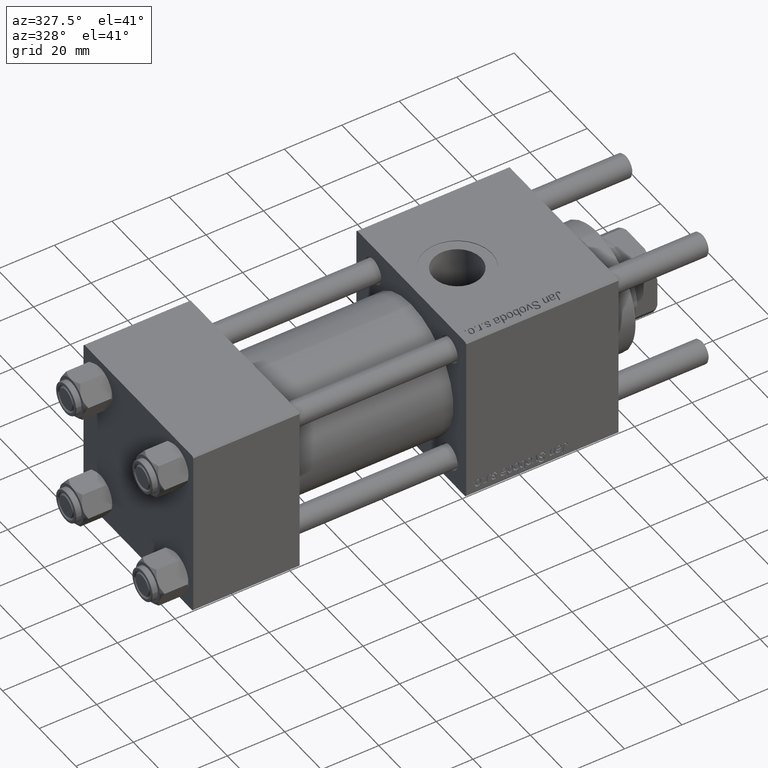
[diagram: clean part render]
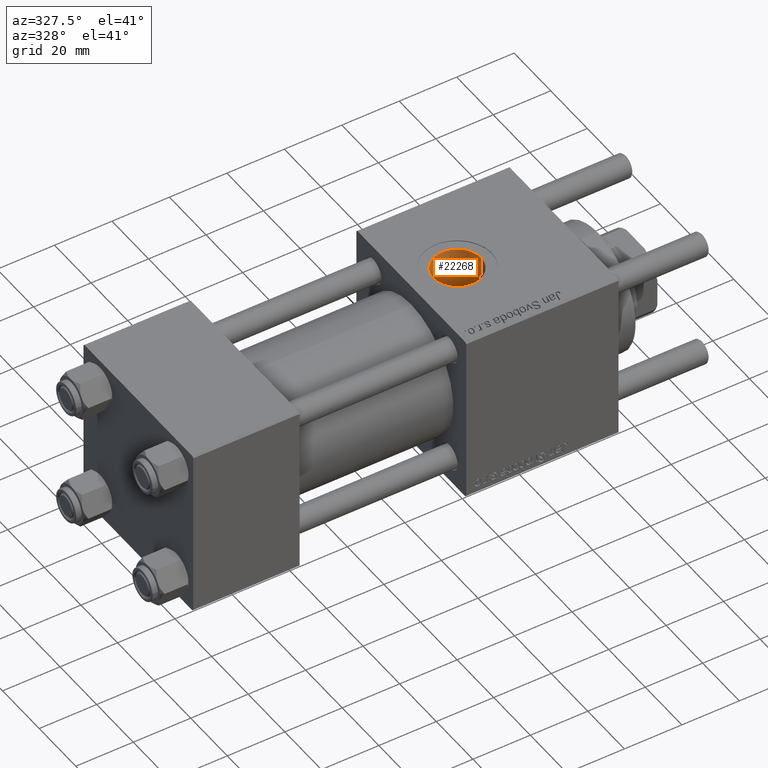
[diagram: same view with one face highlighted and labeled with its STEP entity id]
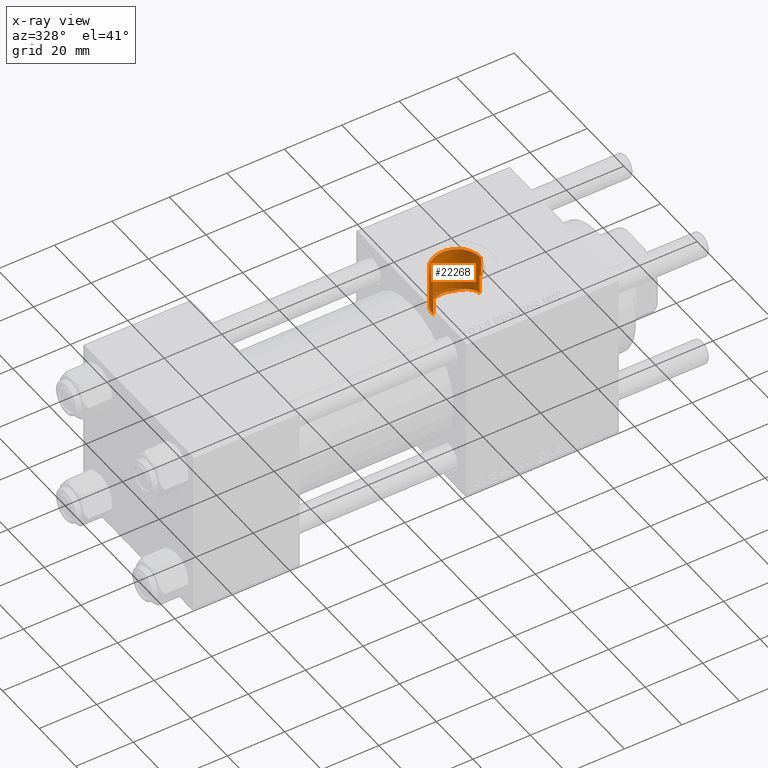
[diagram: x-ray of the same camera — body ghosted, the highlighted face saturated]
A machine part, auxiliary view. The second image highlights one B-rep face of the part: STEP entity #22268.
The next image is the same camera in x-ray: the body ghosted, the highlighted face saturated — about 4% of this face is hidden behind the body in this view.
In plain terms, the highlighted cylindrical surface (edge-blend (fillet) strip) has radius 8.33 mm, axis along (0, 0, -1).
Its self-contained STEP definition (entity closure, byte-faithful):
#111 = CARTESIAN_POINT ( 'NONE',  ( 106.9024469684808594, 7.262668436259995808, 13.69461748577755777 ) ) ;
#610 = ORIENTED_EDGE ( 'NONE', *, *, #39123, .F. ) ;
#725 = EDGE_CURVE ( 'NONE', #4634, #25964, #49102, .T. ) ;
#1122 = B_SPLINE_CURVE_WITH_KNOTS ( 'NONE', 3,
 ( #18820, #31881, #32469, #9627, #55001, #14656, #44934, #22977, #4267, #50565, #4567, #36318, #37196, #28024, #111, #54418 ),
 .UNSPECIFIED., .F., .F.,
 ( 4, 2, 2, 2, 2, 2, 2, 4 ),
 ( 0.009374448786900189609, 0.01054305657029121907, 0.01171166435368224679, 0.01288027213707327798, 0.01404887992046430570, 0.01638609548724638543, 0.01755470327063740621, 0.01872331105402843393 ),
 .UNSPECIFIED. ) ;
#3315 = CARTESIAN_POINT ( 'NONE',  ( 118.5762318573482190, 3.480672338514595232, 15.10763638059241742 ) ) ;
#3953 = B_SPLINE_CURVE_WITH_KNOTS ( 'NONE', 3,
 ( #23844, #57323, #30339, #30631, #47558, #56741, #52895, #16982, #15807, #3315, #52603, #20560, #16099, #38346 ),
 .UNSPECIFIED., .F., .F.,
 ( 4, 2, 2, 2, 2, 2, 4 ),
 ( 1.762687342693953287E-17, 0.002167183143396243707, 0.003250774715094356237, 0.004334366286792468333, 0.005417957858490579995, 0.006501549430188692524, 0.008668732573584917583 ),
 .UNSPECIFIED. ) ;
#4267 = CARTESIAN_POINT ( 'NONE',  ( 103.7310443908884849, 4.086272943823808568, 14.95550201764395837 ) ) ;
#4567 = CARTESIAN_POINT ( 'NONE',  ( 104.8202029067652745, 5.636575315625639071, 14.44950328828300279 ) ) ;
#4634 = VERTEX_POINT ( 'NONE', #28249 ) ;
#4742 = CARTESIAN_POINT ( 'NONE',  ( 102.6700000000000017, -3.469446951953613794E-15, 29.79999999999999716 ) ) ;
#5001 = B_SPLINE_CURVE_WITH_KNOTS ( 'NONE', 3,
 ( #19923, #56991, #47224, #16346 ),
 .UNSPECIFIED., .F., .F.,
 ( 4, 4 ),
 ( 0.000000000000000000, 0.0007063285354565328363 ),
 .UNSPECIFIED. ) ;
#5842 = DIRECTION ( 'NONE',  ( -1.000000000000000000, 0.000000000000000000, 0.000000000000000000 ) ) ;
#6371 = VERTEX_POINT ( 'NONE', #44230 ) ;
#6449 = VERTEX_POINT ( 'NONE', #4742 ) ;
#7767 = CARTESIAN_POINT ( 'NONE',  ( 119.3300000000000125, -2.449316168263869821E-15, 29.79999999999999716 ) ) ;
#9627 = CARTESIAN_POINT ( 'NONE',  ( 102.8066106803055249, 1.552053222944098865, 15.42694403133658909 ) ) ;
#10156 = CARTESIAN_POINT ( 'NONE',  ( 111.0000000000000000, -3.469446951953613794E-15, 29.79999999999999716 ) ) ;
#12697 = CIRCLE ( 'NONE', #44920, 8.330000000000003624 ) ;
#14327 = CARTESIAN_POINT ( 'NONE',  ( 107.2451498032545061, 7.435724578008534813, 13.59999999999999076 ) ) ;
#14476 = FACE_OUTER_BOUND ( 'NONE', #58076, .T. ) ;
#14656 = CARTESIAN_POINT ( 'NONE',  ( 103.1053547801138848, 2.686155454129544484, 15.27016736770789862 ) ) ;
#14764 = CYLINDRICAL_SURFACE ( 'NONE', #38339, 8.330000000000003624 ) ;
#15807 = CARTESIAN_POINT ( 'NONE',  ( 118.2534000047988201, 4.111271999610754513, 14.94835106229168176 ) ) ;
#15841 = CARTESIAN_POINT ( 'NONE',  ( 102.6699999999996180, -2.713081726590588117E-14, 15.50000000000020428 ) ) ;
#15863 = DIRECTION ( 'NONE',  ( 0.000000000000000000, 0.000000000000000000, -1.000000000000000000 ) ) ;
#16099 = CARTESIAN_POINT ( 'NONE',  ( 119.2378105529334107, 1.437110862293704328, 15.45056201154794806 ) ) ;
#16320 = CARTESIAN_POINT ( 'NONE',  ( 111.0000000000000000, -3.469446951953613794E-15, 13.59999999999999076 ) ) ;
#16346 = CARTESIAN_POINT ( 'NONE',  ( 119.3300000000000125, 2.755455270027974659E-15, 22.50000000000000355 ) ) ;
#16982 = CARTESIAN_POINT ( 'NONE',  ( 118.0738984406374072, 4.412568364522008402, 14.86172045093005423 ) ) ;
#18346 = CARTESIAN_POINT ( 'NONE',  ( 111.0000000000000000, -3.469446951953613794E-15, 52.79999999999999716 ) ) ;
#18820 = CARTESIAN_POINT ( 'NONE',  ( 102.6699999999996180, -2.713081726590588117E-14, 15.50000000000020428 ) ) ;
#18858 = CARTESIAN_POINT ( 'NONE',  ( 119.2999999999999545, 0.7063285354568809016, 15.48389808801386103 ) ) ;
#18879 = ORIENTED_EDGE ( 'NONE', *, *, #58407, .T. ) ;
#19015 = EDGE_CURVE ( 'NONE', #6449, #41192, #12697, .T. ) ;
#19603 = ORIENTED_EDGE ( 'NONE', *, *, #20913, .T. ) ;
#19923 = CARTESIAN_POINT ( 'NONE',  ( 119.2999999999999829, 0.7063285354565354002, 22.48891060056044466 ) ) ;
#20321 = LINE ( 'NONE', #56503, #40274 ) ;
#20560 = CARTESIAN_POINT ( 'NONE',  ( 119.0827063978108953, 2.138072539438088615, 15.36711703318994360 ) ) ;
#20780 = DIRECTION ( 'NONE',  ( 1.000000000000000000, 0.000000000000000000, 0.000000000000000000 ) ) ;
#20913 = EDGE_CURVE ( 'NONE', #4634, #6371, #5001, .T. ) ;
#22268 = ADVANCED_FACE ( 'NONE', ( #14476 ), #14764, .F. ) ;
#22977 = CARTESIAN_POINT ( 'NONE',  ( 103.5505958705756484, 3.747264868531968940, 15.04448363899141938 ) ) ;
#23844 = CARTESIAN_POINT ( 'NONE',  ( 114.7548501967454939, 7.435724578008534813, 13.59999999999999076 ) ) ;
#24085 = ORIENTED_EDGE ( 'NONE', *, *, #37967, .F. ) ;
#24959 = CARTESIAN_POINT ( 'NONE',  ( 114.7548501967454939, 7.435724578008534813, 13.59999999999999076 ) ) ;
#25964 = VERTEX_POINT ( 'NONE', #18858 ) ;
#26261 = CARTESIAN_POINT ( 'NONE',  ( 119.2999999999999829, 0.7063285354565354002, 52.79999999999999716 ) ) ;
#28024 = CARTESIAN_POINT ( 'NONE',  ( 106.5763594891585910, 7.068460345354880658, 13.79652937211603003 ) ) ;
#28249 = CARTESIAN_POINT ( 'NONE',  ( 119.2999999999999829, 0.7063285354565354002, 22.48891060056044466 ) ) ;
#29143 = ORIENTED_EDGE ( 'NONE', *, *, #19015, .F. ) ;
#30339 = CARTESIAN_POINT ( 'NONE',  ( 115.9653705457623687, 6.724419165648845009, 13.97437896738289176 ) ) ;
#30631 = CARTESIAN_POINT ( 'NONE',  ( 116.7502179845312753, 6.036956813941138478, 14.27823247417040875 ) ) ;
#31881 = CARTESIAN_POINT ( 'NONE',  ( 102.6699999999999591, 0.3922003781329697625, 15.50000000000000711 ) ) ;
#32469 = CARTESIAN_POINT ( 'NONE',  ( 102.6975598593861463, 0.7810156608275541368, 15.48513758060886225 ) ) ;
#33585 = DIRECTION ( 'NONE',  ( -0.000000000000000000, -0.000000000000000000, -1.000000000000000000 ) ) ;
#35701 = VECTOR ( 'NONE', #49389, 1000.000000000000000 ) ;
#36318 = CARTESIAN_POINT ( 'NONE',  ( 105.6573382553999210, 6.402176101401404473, 14.11876137656380870 ) ) ;
#37188 = DIRECTION ( 'NONE',  ( 0.000000000000000000, 0.000000000000000000, 1.000000000000000000 ) ) ;
#37196 = CARTESIAN_POINT ( 'NONE',  ( 105.9544709984673005, 6.638852620574125396, 14.00831860901981685 ) ) ;
#37301 = DIRECTION ( 'NONE',  ( 0.000000000000000000, 0.000000000000000000, -1.000000000000000000 ) ) ;
#37967 = EDGE_CURVE ( 'NONE', #49272, #51167, #47803, .T. ) ;
#38339 = AXIS2_PLACEMENT_3D ( 'NONE', #18346, #37301, #5842 ) ;
#38346 = CARTESIAN_POINT ( 'NONE',  ( 119.2999999999999545, 0.7063285354568809016, 15.48389808801386103 ) ) ;
#38536 = ORIENTED_EDGE ( 'NONE', *, *, #54079, .T. ) ;
#39123 = EDGE_CURVE ( 'NONE', #41192, #6371, #20321, .T. ) ;
#40274 = VECTOR ( 'NONE', #15863, 1000.000000000000000 ) ;
#41144 = EDGE_CURVE ( 'NONE', #49272, #25964, #3953, .T. ) ;
#41192 = VERTEX_POINT ( 'NONE', #7767 ) ;
#42374 = VERTEX_POINT ( 'NONE', #15841 ) ;
#42543 = ORIENTED_EDGE ( 'NONE', *, *, #41144, .T. ) ;
#43056 = AXIS2_PLACEMENT_3D ( 'NONE', #16320, #37188, #20780 ) ;
#44230 = CARTESIAN_POINT ( 'NONE',  ( 119.3300000000000125, 2.755455270027974659E-15, 22.50000000000000355 ) ) ;
#44920 = AXIS2_PLACEMENT_3D ( 'NONE', #10156, #33585, #46938 ) ;
#44934 = CARTESIAN_POINT ( 'NONE',  ( 103.2381405738433386, 3.047811366702672498, 15.20162253944664776 ) ) ;
#46451 = CARTESIAN_POINT ( 'NONE',  ( 102.6700000000000017, -3.469446951953613794E-15, 52.79999999999999716 ) ) ;
#46630 = ORIENTED_EDGE ( 'NONE', *, *, #725, .F. ) ;
#46938 = DIRECTION ( 'NONE',  ( 1.000000000000000000, 0.000000000000000000, 0.000000000000000000 ) ) ;
#47224 = CARTESIAN_POINT ( 'NONE',  ( 119.3300000000000125, 0.2354428451521802246, 22.50000000000000355 ) ) ;
#47558 = CARTESIAN_POINT ( 'NONE',  ( 117.0000841562241334, 5.788852077867683299, 14.38116921446069618 ) ) ;
#47803 = CIRCLE ( 'NONE', #43056, 8.330000000000003624 ) ;
#49102 = LINE ( 'NONE', #26261, #35701 ) ;
#49272 = VERTEX_POINT ( 'NONE', #24959 ) ;
#49389 = DIRECTION ( 'NONE',  ( 0.000000000000000000, 0.000000000000000000, -1.000000000000000000 ) ) ;
#50565 = CARTESIAN_POINT ( 'NONE',  ( 104.3389503160342855, 5.060146834073014688, 14.66641001412193823 ) ) ;
#50908 = DIRECTION ( 'NONE',  ( 0.000000000000000000, 0.000000000000000000, -1.000000000000000000 ) ) ;
#51167 = VERTEX_POINT ( 'NONE', #14327 ) ;
#52603 = CARTESIAN_POINT ( 'NONE',  ( 118.7201712771788209, 3.148968827299039930, 15.18062598671783192 ) ) ;
#52895 = CARTESIAN_POINT ( 'NONE',  ( 117.6798436837576389, 4.989036688639971295, 14.67824946145068310 ) ) ;
#54079 = EDGE_CURVE ( 'NONE', #42374, #51167, #1122, .T. ) ;
#54418 = CARTESIAN_POINT ( 'NONE',  ( 107.2451498032545061, 7.435724578008534813, 13.59999999999999076 ) ) ;
#55001 = CARTESIAN_POINT ( 'NONE',  ( 102.8890011916722216, 1.937150640225431042, 15.38313654488691284 ) ) ;
#55622 = LINE ( 'NONE', #46451, #57832 ) ;
#56503 = CARTESIAN_POINT ( 'NONE',  ( 119.3300000000000125, -2.449316168263869032E-15, 52.79999999999999716 ) ) ;
#56741 = CARTESIAN_POINT ( 'NONE',  ( 117.4652904211442745, 5.264203456503698142, 14.58139219426319322 ) ) ;
#56991 = CARTESIAN_POINT ( 'NONE',  ( 119.3200361445783102, 0.4708856903043578401, 22.49630535626710781 ) ) ;
#57323 = CARTESIAN_POINT ( 'NONE',  ( 115.3902205841902457, 7.114878828643538711, 13.77542063413991080 ) ) ;
#57832 = VECTOR ( 'NONE', #50908, 1000.000000000000000 ) ;
#58076 = EDGE_LOOP ( 'NONE', ( #610, #29143, #18879, #38536, #24085, #42543, #46630, #19603 ) ) ;
#58407 = EDGE_CURVE ( 'NONE', #6449, #42374, #55622, .T. ) ;